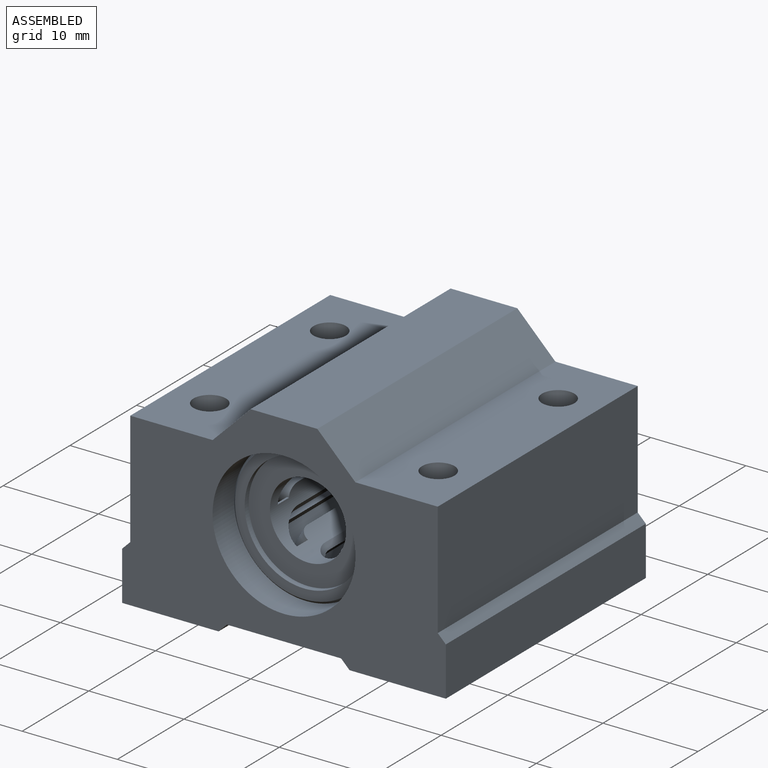
[diagram: assembled view]
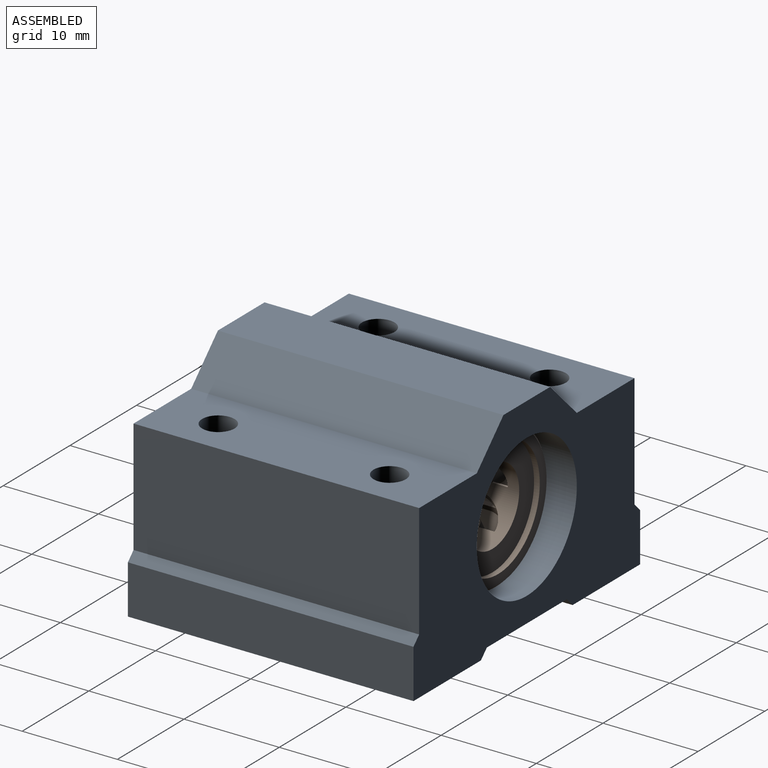
[diagram: assembled view, second angle]
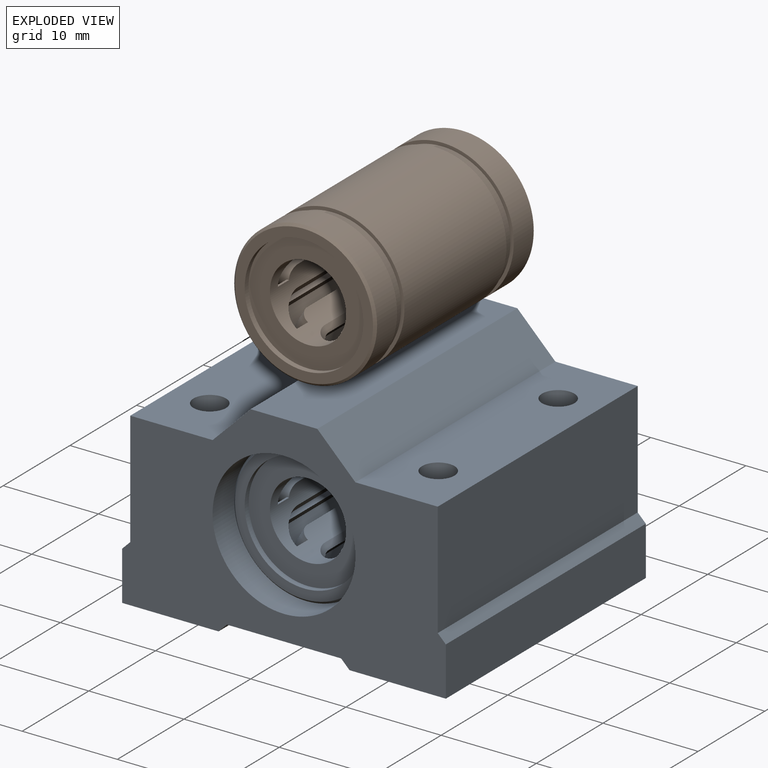
[diagram: exploded view]
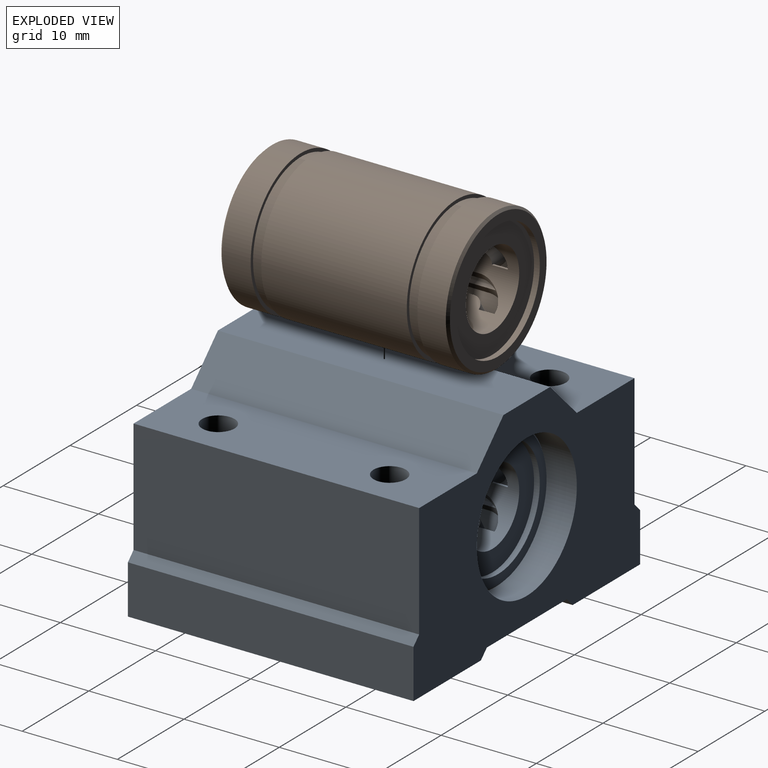
[diagram: exploded view, second angle]
FCSTD DOCUMENT  (FreeCAD 0.21R33694 (Git))
Label: SCXXXUU
Comment: Parametric linear bearings with housing.\n\nData from: \n'https://www.dold-mechatronik.de/documents/Datasheets/Linear_Guidance/Datasheet_linear_bearing-without-housing.pdf	\n'https://www.dold-mechatro... (+156 chars)
License: Creative Commons Attribution 4.0
LicenseURL: https://creativecommons.org/licenses/by/4.0/
objects: Sketcher::SketchObject×6, PartDesign::Body×3, PartDesign::Pocket×3, PartDesign::Pad×2, App::Part×2, App::Link×2, PartDesign::Revolution×1, PartDesign::Chamfer×1, Spreadsheet::Sheet×1, PartDesign::PolarPattern×1, PartDesign::Hole×1
note: 26 computed .brp shape members not serialized (recipe doc carries the construction recipe); baked Part::Feature solids carry a one-line shape summary decoded from their .brp

FEATURE [Sketcher::SketchObject] Sketch
  FullyConstrained = true
  MapMode = 5
  Placement = pos=(0,0,0) rot=(1,0,0;1.5708rad)
  Support = -> [XZ_Plane]
  expr: Constraints[2] = <<Spreadsheet>>.dr_dim
  expr: Constraints[3] = <<Spreadsheet>>.Daux_dim
  sketch-geometry (2):
    g0: Circle CenterX=0 CenterY=0 CenterZ=0 NormalX=0 NormalY=0 NormalZ=1 AngleXU=0 Radius=4
    g1: Circle CenterX=0 CenterY=0 CenterZ=0 NormalX=0 NormalY=0 NormalZ=1 AngleXU=0 Radius=6.23
  constraints (4):
    c: Coincident(g0,g-1)
    c: Coincident(g1,g0)
    c: Diameter(g0) = 8
    c: Diameter(g1) = 12.46
FEATURE [PartDesign::Pad] Pad
  Direction = (0,-1,-2e-16)
  Length = 22.8
  Length2 = 100
  Midplane = true
  Placement = pos=(0,0,0) rot=(1,0,0;1.5708rad)
  Profile = -> Sketch
  ReferenceAxis = -> Sketch [N_Axis]
  Type = 0
  expr: Length = 0.95 * Spreadsheet.L_dim
FEATURE [Sketcher::SketchObject] Sketch001
  FullyConstrained = true
  MapMode = 5
  Support = -> [XY_Plane002]
  expr: Constraints[27] = <<Spreadsheet>>.Daux_dim / 2
  expr: Constraints[29] = <<Spreadsheet>>.L_dim
  expr: Constraints[32] = <<Spreadsheet>>.B_dim
  expr: Constraints[33] = <<Spreadsheet>>.W_dim
  expr: Constraints[34] = <<Spreadsheet>>.D1_dim / 2
  expr: Constraints[35] = <<Spreadsheet>>.D_dim / 2
  sketch-geometry (13):
    g0: LineSegment StartX=6.23 StartY=12 StartZ=0 EndX=6.23 EndY=-12 EndZ=0
    g1: LineSegment StartX=6.23 StartY=-12 StartZ=0 EndX=7.5 EndY=-12 EndZ=0
    g2: LineSegment StartX=7.5 StartY=-12 StartZ=0 EndX=7.5 EndY=-8.75 EndZ=0
    g3: LineSegment StartX=7.5 StartY=-8.75 StartZ=0 EndX=7.15 EndY=-8.75 EndZ=0
    g4: LineSegment StartX=7.15 StartY=-8.75 StartZ=0 EndX=7.15 EndY=-7.65 EndZ=0
    g5: LineSegment StartX=7.15 StartY=-7.65 StartZ=0 EndX=7.5 EndY=-7.65 EndZ=0
    g6: LineSegment StartX=7.5 StartY=-7.65 StartZ=0 EndX=7.5 EndY=7.65 EndZ=0
    g7: LineSegment StartX=7.5 StartY=7.65 StartZ=0 EndX=7.15 EndY=7.65 EndZ=0
    g8: LineSegment StartX=7.15 StartY=7.65 StartZ=0 EndX=7.15 EndY=8.75 EndZ=0
    g9: LineSegment StartX=7.15 StartY=8.75 StartZ=0 EndX=7.5 EndY=8.75 EndZ=0
    g10: LineSegment StartX=7.5 StartY=8.75 StartZ=0 EndX=7.5 EndY=12 EndZ=0
    g11: LineSegment StartX=7.5 StartY=12 StartZ=0 EndX=6.23 EndY=12 EndZ=0
    g12: GeomPoint X=6.23 Y=0 Z=0
  constraints (37):
    c: Vertical(g0)
    c: Coincident(g0,g1)
    c: Horizontal(g1)
    c: Coincident(g1,g2)
    c: Vertical(g2)
    c: Coincident(g2,g3)
    c: Horizontal(g3)
    c: Coincident(g3,g4)
    c: Vertical(g4)
    c: Coincident(g4,g5)
    c: Horizontal(g5)
    c: Coincident(g5,g6)
    c: Vertical(g6)
    c: Coincident(g6,g7)
    c: Horizontal(g7)
    c: Coincident(g7,g8)
    c: Vertical(g8)
    c: Coincident(g8,g9)
    c: Coincident(g9,g10)
    c: Vertical(g10)
    c: Coincident(g10,g11)
    c: Coincident(g11,g0)
    c: Horizontal(g11)
    c: Equal(g8,g4)
    c: Horizontal(g9)
    c: Vertical(g5,g2)
    c: Vertical(g6,g9)
    c: DistanceX(g-1,g0) = 6.23
    c: Equal(g2,g10)
    c: DistanceY(g0,g0) = 24
    c: PointOnObject(g12,g-1)
    c: Symmetric(g0,g0,g12)
    c: DistanceY(g2,g9) = 17.5
    c: DistanceY(g8,g8) = 1.1
    c: DistanceX(g8) = 7.15
    c: DistanceX(g10) = 7.5
    c: Vertical(g4,g7)
FEATURE [PartDesign::Revolution] Revolution
  Angle = 360
  Axis = (0,1,0)
  Base = (0,0,0)
  Profile = -> Sketch001
  ReferenceAxis = -> Sketch001 [V_Axis]
  Reversed = true
FEATURE [PartDesign::Chamfer] Chamfer
  Angle = 45
  Base = -> Revolution [Edge4,Edge17]
  BaseFeature = -> Revolution
  ChamferType = 0
  FlipDirection = false
  Size = 0.254
  Size2 = 1
  SupportTransform = false
  UseAllEdges = false
  expr: Size = 0.2 * <<Spreadsheet>>.aux_dim
FEATURE [PartDesign::Body] Body001  label="Metal"
  Group = -> [Sketch001,Revolution,Chamfer]
  Origin = -> Origin002
  Tip = -> Chamfer
FEATURE [Spreadsheet::Sheet] Spreadsheet
  SCXXUU = 0
  cells = A1='Multiple linear bearing/slide bush models in a single file. Only closed models.; A2='Data from:; B2='https://www.dold-mechatronik.de/documents/Datasheets/Linear_Guidance/Datasheet_linear_bearing-without-housing.pdf; B3='https://www.dold-mechatronik.de/documents/Datasheets/Linear_Guidance/Datasheet_linear-bearing-with-housing-closed.pdf; A4='SCE···UU; B4='Bearings according to the metric-European standard; F4='UU; G4='Dirt wipers on both sides; A5='SC···UU; B5='Metric-Japanese standard bearing; A6='SCE···LUU; B6='Bearings according to the metric-European standard; A7='SC···LUU; B7='Metric-Japanese standard bearing; A10='Note 1: Daux variable means the diameter between the plastic retainer and the metal enclosure, there is no data in the pdf and did not find datasheet of retainers. Also same ball bearings size is assumed.; A11='Note 2: There are 38 models; A12='Note 3: Two linear bearings are used, when only one is needed both occupies the same position; A15='Model; D15='Linear bearing data; M15='Housing data; B16='Linear bearing used; C16='Quantity of Linear bearings; D16='Ball rows; E16='dr; F16='D; G16='L; H16='B; I16='W; J16='D1; K16='aux; L16='Daux; M16='Shaft diameter; N16='h; O16='D; P16='W; Q16='H; R16='G; S16='A; T16='J; U16='E; V16='S_1; W16='l; X16='S_2; Y16='K; Z16='L; AA16='Weight; AB16='Linear bearing offset; AC16='Visibility of second bearing; A17==hiddenref(Part.Model.String); B17==.B26; C17(linear_bearing_quantity)==.C26; D17(ball_rows)==.D26; E17(dr_dim)==.E26; F17(D_dim)==.F26; G17(L_dim)==.G26; H17(B_dim)==.H26; I17(W_dim)==.I26; J17(D1_dim)==.J26; K17(aux_dim)==.K26; L17(Daux_dim)==.L26; M17(housing_dia)==.M26; N17(housing_h)==.N26; O17(housing_D)==.O26; P17(housing_W)==.P26; Q17(housing_H)==.Q26; R17(housing_G)==.R26; S17(housing_A)==.S26; T17(housing_J)==.T26; U17(housing_E)==.U26; V17(housing_S1)==.V26; W17(housing_l)==.W26; X17(housing_S2)==.X26; Y17(housing_K)==.Y26; Z17(housing_L)==.Z26; AA17(housing_weight)==.AA26; AB17(linear_bearing_offset)==.AB26; AC17(second_lin_bearing_visibility)==.AC26; A18='SCE8UU; B18='LME8UU; C18=1; D18=6; E18=8; F18=16; G18=25; H18=16.5; I18=1.1; J18=15.2; K18==F18 * 0.0846666666666667; L18==F18 - 2 * K18; M18=8; N18=11; O18=17; P18=34; Q18=22; R18=18; S18=6; T18=24; U18=5; V18='M4; W18=8; X18=3.4; Y18=18; Z18=30; AA18=60; AB18==0 mm; AC18==False; A19='SCE12UU; B19='LME12UU; C19=1; D19=6; E19=12; F19=22; G19=32; H19=22.9; I19=1.3; J19=21; K19==F19 * 0.0846666666666667; L19==F19 - 2 * K19; M19=12; N19=15; O19=22; P19=44; Q19=30; R19=24; S19=8; T19=33; U19=5.5; V19='M5; W19=10; X19=4.3; Y19=26; Z19=39; AA19=118; AB19==0 mm; AC19==False; A20='SCE16UU; B20='LME16UU; C20=1; D20=6; E20=16; F20=26; G20=36; H20=24.9; I20=1.3; J20=24.9; K20==F20 * 0.0846666666666667; L20==F20 - 2 * K20; M20=16; N20=19; O20=25; P20=50; Q20=38.5; R20=32.5; S20=9; T20=36; U20=7; V20='M5; W20=12; X20=4.3; Y20=34; Z20=44; AA20=180; AB20==0 mm; AC20==False; A21='SCE20UU; B21='LME20UU; C21=1; D21=6; E21=20; F21=32; G21=45; H21=31.5; I21=1.6; J21=30.3; K21==F21 * 0.0846666666666667; L21==F21 - 2 * K21; M21=20; N21=21; O21=27; P21=54; Q21=41; R21=35; S21=11; T21=40; U21=7; V21='M6; W21=12; X21=5.2; Y21=40; Z21=53; AA21=245; AB21==0 mm; AC21==False; A22='SCE25UU; B22='LME25UU; C22=1; D22=6; E22=25; F22=40; G22=58; +979 more cells
  expr: .SCXXUU.Enum = cells[<<A18:|>>]
  expr: .cells.Bind.B17.ZZ17 = tuple(.cells; <<B>> + str(hiddenref(Part.Model) + 18); <<ZZ>> + str(hiddenref(Part.Model) + 18))
FEATURE [Sketcher::SketchObject] Sketch002
  AttachmentOffset = pos=(0,0,6.23) rot=(0,0,1;0rad)
  FullyConstrained = true
  MapMode = 5
  Placement = pos=(6.23,-1.4e-15,1.4e-15) rot=(0.57735,0.57735,0.57735;2.0944rad)
  Support = -> [YZ_Plane]
  expr: .AttachmentOffset.Base.z = <<Spreadsheet>>.Daux_dim / 2
  expr: Constraints[21] = 0.85 * <<Spreadsheet>>.L_dim - 5.6
  sketch-geometry (10):
    g0: ArcOfCircle CenterX=-7.4 CenterY=0 CenterZ=0 NormalX=0 NormalY=0 NormalZ=1 AngleXU=0 Radius=1.15 StartAngle=1.5708 EndAngle=4.71239
    g1: ArcOfCircle CenterX=7.4 CenterY=0 CenterZ=0 NormalX=0 NormalY=0 NormalZ=1 AngleXU=0 Radius=1.15 StartAngle=4.71239 EndAngle=7.85398
    g2: LineSegment StartX=-7.4 StartY=-1.15 StartZ=0 EndX=7.4 EndY=-1.15 EndZ=0
    g3: LineSegment StartX=7.4 StartY=1.15 StartZ=0 EndX=-7.4 EndY=1.15 EndZ=0
    g4: ArcOfCircle CenterX=-7.4 CenterY=0 CenterZ=0 NormalX=0 NormalY=0 NormalZ=1 AngleXU=0 Radius=2.8 StartAngle=1.5708 EndAngle=4.71239
    g5: ArcOfCircle CenterX=7.4 CenterY=0 CenterZ=0 NormalX=0 NormalY=0 NormalZ=1 AngleXU=0 Radius=2.8 StartAngle=4.71239 EndAngle=7.85398
    g6: LineSegment StartX=-7.4 StartY=-2.8 StartZ=0 EndX=7.4 EndY=-2.8 EndZ=0
    g7: LineSegment StartX=7.4 StartY=2.8 StartZ=0 EndX=-7.4 EndY=2.8 EndZ=0
    g8: GeomPoint X=-6.25 Y=0 Z=0
    g9: GeomPoint X=8.55 Y=0 Z=0
  constraints (22):
    c: Tangent(g0,g2) = -1.5708
    c: Tangent(g2,g1) = -1.5708
    c: Tangent(g1,g3) = -1.5708
    c: Tangent(g3,g0) = -1.5708
    c: Equal(g0,g1)
    c: PointOnObject(g0,g-1)
    c: Symmetric(g1,g0,g-1)
    c: Tangent(g4,g6) = -1.5708
    c: Tangent(g6,g5) = -1.5708
    c: Tangent(g5,g7) = -1.5708
    c: Tangent(g7,g4) = -1.5708
    c: Equal(g4,g5)
    c: PointOnObject(g4,g-1)
    c: Symmetric(g4,g5,g-1)
    c: Diameter(g1) = 2.3
    c: Diameter(g5) = 5.6
    c: PointOnObject(g8,g0)
    c: PointOnObject(g9,g1)
    c: PointOnObject(g8,g-1)
    c: PointOnObject(g9,g-1)
    c: Vertical(g1,g5)
    c: DistanceX(g7,g7) = 14.8
FEATURE [PartDesign::Pocket] Pocket
  BaseFeature = -> Pad
  Direction = (-1,2e-16,-3e-16)
  Length = 2.007
  Length2 = 5
  Placement = pos=(0,0,0) rot=(1,0,0;1.5708rad)
  Profile = -> Sketch002
  ReferenceAxis = -> Sketch002 [N_Axis]
  Type = 0
  expr: Length = 0.9 * (<<Spreadsheet>>.Daux_dim / 2 - <<Spreadsheet>>.dr_dim / 2)
FEATURE [Sketcher::SketchObject] Sketch003
  FullyConstrained = true
  MapMode = 5
  Placement = pos=(0,0,0) rot=(0.57735,0.57735,0.57735;2.0944rad)
  Support = -> [YZ_Plane]
  expr: Constraints[19] = 0.85 * Spreadsheet.L_dim
  sketch-geometry (12):
    g0: LineSegment StartX=-8.55 StartY=1e-16 StartZ=0 EndX=-10.2 EndY=3e-16 EndZ=0
    g1: LineSegment StartX=-7.4 StartY=-2.8 StartZ=0 EndX=7.4 EndY=-2.8 EndZ=0
    g2: LineSegment StartX=7.4 StartY=-1.15 StartZ=0 EndX=-7.4 EndY=-1.15 EndZ=0
    g3: ArcOfCircle CenterX=-7.4 CenterY=0 CenterZ=0 NormalX=0 NormalY=0 NormalZ=1 AngleXU=0 Radius=2.8 StartAngle=3.14159 EndAngle=4.71239
    g4: ArcOfCircle CenterX=-7.4 CenterY=0 CenterZ=0 NormalX=0 NormalY=0 NormalZ=1 AngleXU=0 Radius=1.15 StartAngle=3.14159 EndAngle=4.71239
    g5: ArcOfCircle CenterX=7.4 CenterY=0 CenterZ=0 NormalX=0 NormalY=0 NormalZ=1 AngleXU=0 Radius=2.8 StartAngle=4.71239 EndAngle=6.28319
    g6: ArcOfCircle CenterX=7.4 CenterY=0 CenterZ=0 NormalX=0 NormalY=0 NormalZ=1 AngleXU=0 Radius=1.15 StartAngle=4.71239 EndAngle=6.28319
    g7: LineSegment StartX=7.4 StartY=0 StartZ=0 EndX=7.4 EndY=-1.15 EndZ=0
    g8: LineSegment StartX=7.4 StartY=0 StartZ=0 EndX=8.55 EndY=-3e-16 EndZ=0
    g9: LineSegment StartX=7.4 StartY=0 StartZ=0 EndX=10.2 EndY=-7e-16 EndZ=0
    g10: LineSegment StartX=7.4 StartY=-2.8 StartZ=0 EndX=7.4 EndY=0 EndZ=0
    g11: LineSegment StartX=8.55 StartY=-3e-16 StartZ=0 EndX=10.2 EndY=-7e-16 EndZ=0
  constraints (34):
    c: PointOnObject(g0,g-1)
    c: PointOnObject(g0,g-1)
    c: PointOnObject(g5,g-1)
    c: Horizontal(g1)
    c: Horizontal(g2)
    c: PointOnObject(g3,g-1)
    c: Coincident(g3,g1)
    c: Coincident(g3,g0)
    c: Coincident(g4,g3)
    c: Coincident(g4,g2)
    c: Coincident(g4,g0)
    c: Vertical(g2,g1)
    c: Vertical(g1,g3)
    c: PointOnObject(g5,g-1)
    c: Coincident(g5,g1)
    c: PointOnObject(g6,g-1)
    c: Coincident(g6,g2)
    c: Vertical(g1,g2)
    c: Vertical(g2,g5)
    c: DistanceX(g0,g5) = 20.4
    c: Symmetric(g6,g0,g-1)
    c: Coincident(g7,g5)
    c: Coincident(g7,g2)
    c: Coincident(g8,g5)
    c: DistanceX(g8,g8) = 1.15
    c: Coincident(g9,g5)
    c: Coincident(g10,g1)
    c: Coincident(g10,g5)
    c: DistanceX(g9,g9) = 2.8
    c: Coincident(g5,g9)
    c: Coincident(g6,g8)
    c: Equal(g8,g7)
    c: Coincident(g11,g6)
    c: Coincident(g11,g5)
FEATURE [PartDesign::Pocket] Pocket001
  BaseFeature = -> Pocket
  Direction = (-1,2e-16,-3e-16)
  Length = 6.23
  Length2 = 5
  Placement = pos=(0,0,0) rot=(1,0,0;1.5708rad)
  Profile = -> Sketch003
  ReferenceAxis = -> Sketch003 [N_Axis]
  Reversed = true
  Type = 0
  expr: Length = <<Spreadsheet>>.Daux_dim / 2
FEATURE [PartDesign::PolarPattern] PolarPattern
  Angle = 360
  Axis = -> Y_Axis
  BaseFeature = -> Pocket001
  Occurrences = 6
  Originals = -> [Pocket001,Pocket]
  Placement = pos=(0,0,0) rot=(1,0,0;1.5708rad)
  expr: Occurrences = <<Spreadsheet>>.ball_rows
FEATURE [PartDesign::Body] Body  label="Resin retainer"
  Group = -> [Sketch,Pad,Sketch002,Pocket,Sketch003,Pocket001,PolarPattern]
  Origin = -> Origin
  Tip = -> PolarPattern
FEATURE [Sketcher::SketchObject] Sketch004
  FullyConstrained = true
  MapMode = 5
  Placement = pos=(0,0,0) rot=(1,0,0;1.5708rad)
  Support = -> [XZ_Plane003]
  expr: Constraints[1] = Spreadsheet.D_dim
  expr: Constraints[30] = Spreadsheet.housing_D
  expr: Constraints[31] = Spreadsheet.housing_H
  expr: Constraints[32] = -Spreadsheet.housing_h
  expr: Constraints[33] = Spreadsheet.housing_G
  expr: Constraints[34] = Spreadsheet.housing_W * 6 / 17
  expr: Constraints[35] = Spreadsheet.housing_W * 7 / 34
  expr: Constraints[36] = Spreadsheet.housing_A
  expr: Constraints[37] = 0.95 * Spreadsheet.housing_D
  expr: Constraints[42] = Spreadsheet.housing_H / 25
  sketch-geometry (17):
    g0: Circle CenterX=0 CenterY=0 CenterZ=0 NormalX=0 NormalY=0 NormalZ=1 AngleXU=0 Radius=7.5
    g1: LineSegment StartX=-17 StartY=-11 StartZ=0 EndX=-6.88 EndY=-11 EndZ=0
    g2: LineSegment StartX=-6.88 StartY=-11 StartZ=0 EndX=-6 EndY=-10.12 EndZ=0
    g3: LineSegment StartX=-6 StartY=-10.12 StartZ=0 EndX=6 EndY=-10.12 EndZ=0
    g4: LineSegment StartX=6.88 StartY=-11 StartZ=0 EndX=17 EndY=-11 EndZ=0
    g5: LineSegment StartX=17 StartY=-11 StartZ=0 EndX=17 EndY=-5.85 EndZ=0
    g6: LineSegment StartX=17 StartY=-5.85 StartZ=0 EndX=16.15 EndY=-5 EndZ=0
    g7: LineSegment StartX=16.15 StartY=-5 StartZ=0 EndX=16.15 EndY=7 EndZ=0
    g8: LineSegment StartX=16.15 StartY=7 StartZ=0 EndX=7.5 EndY=7 EndZ=0
    g9: LineSegment StartX=7.5 StartY=7 StartZ=0 EndX=3.5 EndY=11 EndZ=0
    g10: LineSegment StartX=3.5 StartY=11 StartZ=0 EndX=-3.5 EndY=11 EndZ=0
    g11: LineSegment StartX=-3.5 StartY=11 StartZ=0 EndX=-7.5 EndY=7 EndZ=0
    g12: LineSegment StartX=-7.5 StartY=7 StartZ=0 EndX=-16.15 EndY=7 EndZ=0
    g13: LineSegment StartX=-16.15 StartY=7 StartZ=0 EndX=-16.15 EndY=-5 EndZ=0
    g14: LineSegment StartX=-17 StartY=-5.85 StartZ=0 EndX=-17 EndY=-11 EndZ=0
    g15: LineSegment StartX=6 StartY=-10.12 StartZ=0 EndX=6.88 EndY=-11 EndZ=0
    g16: LineSegment StartX=-17 StartY=-5.85 StartZ=0 EndX=-16.15 EndY=-5 EndZ=0
  constraints (47):
    c: Coincident(g0,g-1)
    c: Diameter(g0) = 15
    c: Horizontal(g1)
    c: Coincident(g1,g2)
    c: Coincident(g2,g3)
    c: Horizontal(g3)
    c: Horizontal(g4)
    c: Coincident(g4,g5)
    c: Coincident(g5,g6)
    c: Coincident(g6,g7)
    c: Vertical(g7)
    c: Coincident(g7,g8)
    c: Horizontal(g8)
    c: Coincident(g8,g9)
    c: Coincident(g9,g10)
    c: Coincident(g10,g11)
    c: Coincident(g11,g12)
    c: Horizontal(g12)
    c: Coincident(g12,g13)
    c: Vertical(g13)
    c: Coincident(g14,g1)
    c: Vertical(g14)
    c: Vertical(g5)
    c: Symmetric(g10,g9,g-2)
    c: Symmetric(g11,g8,g-2)
    c: Equal(g8,g12)
    c: Equal(g1,g4)
    c: Equal(g5,g14)
    c: Parallel(g6,g9)
    c: Horizontal(g13,g6)
    c: DistanceX(g5) = 17
    c: DistanceY(g4,g9) = 22
    c: DistanceY(g4) = -11
    c: DistanceY(g4,g7) = 18
    c: DistanceX(g3,g3) = 12
    c: DistanceX(g10,g10) = 7
    c: DistanceY(g4,g6) = 6
    c: DistanceX(g7) = 16.15
    c: Coincident(g15,g3)
    c: Coincident(g15,g4)
    c: Angle(g4,g15) = 2.35619
    c: Parallel(g15,g6)
    c: DistanceY(g1,g2) = 0.88
    c: Symmetric(g14,g5,g-2)
    c: Coincident(g16,g14)
    c: Coincident(g16,g13)
    c: Perpendicular(g2,g15)
FEATURE [PartDesign::Pad] Pad001
  Direction = (0,-1,-2e-16)
  Length = 30
  Length2 = 10
  Midplane = true
  Placement = pos=(0,0,0) rot=(1,0,0;1.5708rad)
  Profile = -> Sketch004
  ReferenceAxis = -> Sketch004 [N_Axis]
  Type = 0
  expr: Length = Spreadsheet.housing_L
FEATURE [Sketcher::SketchObject] Sketch005
  AttachmentOffset = pos=(0,0,-11) rot=(0,0,1;0rad)
  FullyConstrained = true
  MapMode = 5
  Placement = pos=(0,0,-11) rot=(0,0,1;0rad)
  Support = -> [XY_Plane003]
  expr: .AttachmentOffset.Base.z = -Spreadsheet.housing_h
  expr: Constraints[17] = Spreadsheet.housing_J
  expr: Constraints[18] = Spreadsheet.housing_K
  expr: Constraints[19] = Spreadsheet.housing_S2
  sketch-geometry (9):
    g0: LineSegment StartX=-12 StartY=-9 StartZ=0 EndX=-12 EndY=9 EndZ=0
    g1: LineSegment StartX=-12 StartY=9 StartZ=0 EndX=12 EndY=9 EndZ=0
    g2: LineSegment StartX=12 StartY=9 StartZ=0 EndX=12 EndY=-9 EndZ=0
    g3: LineSegment StartX=12 StartY=-9 StartZ=0 EndX=-12 EndY=-9 EndZ=0
    g4: GeomPoint X=5e-16 Y=-6e-16 Z=0
    g5: Circle CenterX=-12 CenterY=9 CenterZ=0 NormalX=0 NormalY=0 NormalZ=1 AngleXU=0 Radius=1.7
    g6: Circle CenterX=12 CenterY=9 CenterZ=0 NormalX=0 NormalY=0 NormalZ=1 AngleXU=0 Radius=1.7
    g7: Circle CenterX=12 CenterY=-9 CenterZ=0 NormalX=0 NormalY=0 NormalZ=1 AngleXU=0 Radius=1.7
    g8: Circle CenterX=-12 CenterY=-9 CenterZ=0 NormalX=0 NormalY=0 NormalZ=1 AngleXU=0 Radius=1.7
  constraints (20):
    c: Coincident(g0,g1)
    c: Coincident(g1,g2)
    c: Coincident(g2,g3)
    c: Coincident(g3,g0)
    c: Horizontal(g1)
    c: Horizontal(g3)
    c: Vertical(g0)
    c: Vertical(g2)
    c: Symmetric(g1,g0,g4)
    c: Coincident(g4,g-1)
    c: Coincident(g5,g0)
    c: Coincident(g6,g1)
    c: Coincident(g7,g2)
    c: Coincident(g8,g0)
    c: Equal(g8,g7)
    c: Equal(g7,g6)
    c: Equal(g6,g5)
    c: DistanceX(g1,g1) = 24
    c: DistanceY(g2,g2) = 18
    c: Diameter(g6) = 3.4
FEATURE [PartDesign::Pocket] Pocket002
  BaseFeature = -> Pad001
  Direction = (0,0,-1)
  Length = 5
  Length2 = 5
  Placement = pos=(0,0,0) rot=(1,0,0;1.5708rad)
  Profile = -> Sketch005
  ReferenceAxis = -> Sketch005 [N_Axis]
  Reversed = true
  Type = 1
FEATURE [PartDesign::Hole] Hole
  BaseFeature = -> Pocket002
  CustomThreadClearance = 0
  Depth = 8
  DepthType = 0
  Diameter = 4.8
  DrillForDepth = false
  DrillPoint = 1
  DrillPointAngle = 118
  HoleCutCountersinkAngle = 90
  HoleCutCustomValues = false
  HoleCutDepth = 0
  HoleCutDiameter = 9.1
  HoleCutType = 0
  ModelThread = false
  Placement = pos=(0,0,0) rot=(1,0,0;1.5708rad)
  Profile = -> Sketch005
  Reversed = true
  Tapered = false
  TaperedAngle = 90
  ThreadClass = 0
  ThreadDepth = 8
  ThreadDepthType = 0
  ThreadDirection = 0
  ThreadFit = 2
  ThreadSize = 11
  ThreadType = 1
  Threaded = false
  UseCustomThreadClearance = false
  expr: Depth = Spreadsheet.housing_l
  expr: ThreadSize = Spreadsheet.housing_S1
FEATURE [PartDesign::Body] Body002  label="Housing"
  Group = -> [Sketch004,Pad001,Sketch005,Pocket002,Hole]
  Origin = -> Origin003
  Tip = -> Hole
FEATURE [App::Part] Part001  label="Linear bearing"
  Group = -> [Body,Body001]
  Origin = -> Origin004
FEATURE [App::Link] Link001  label="Linear bearing001"
  LinkedObject = -> Part001
  expr: .Placement.Base.y = (-1 + Spreadsheet.linear_bearing_quantity) * Spreadsheet.linear_bearing_offset
FEATURE [App::Link] Link002  label="Linear bearing002"
  LinkedObject = -> Part001
  expr: .Placement.Base.y = (-1 + Spreadsheet.linear_bearing_quantity) * -Spreadsheet.linear_bearing_offset
  expr: Visibility = Spreadsheet.second_lin_bearing_visibility
FEATURE [App::Part] Part  label="SCXXXUU"
  Group = -> [Body002,Link001,Link002]
  Model = 8
  Origin = -> Origin001
  expr: .Model.Enum = Spreadsheet.cells[<<A18:|>>]
